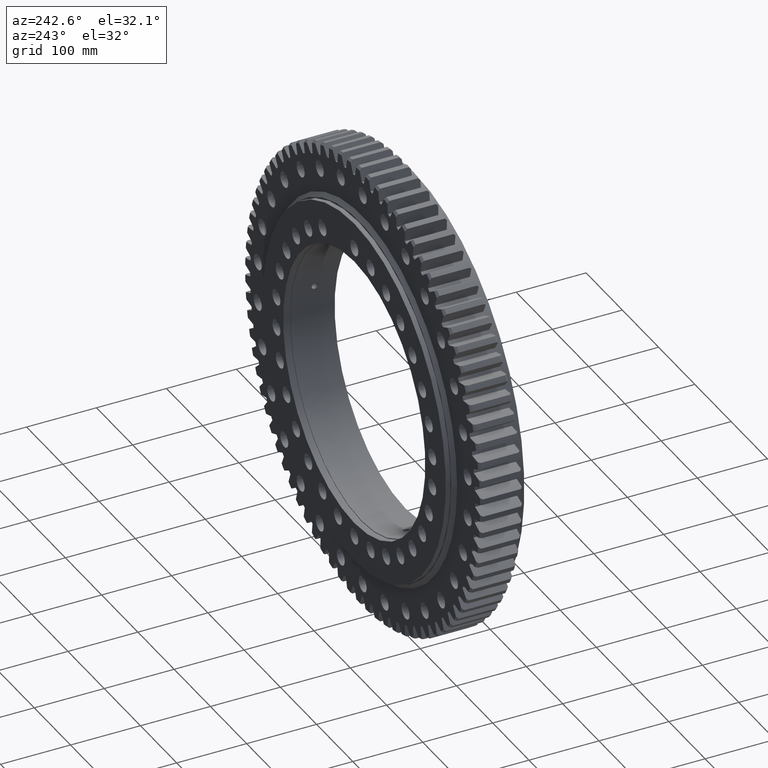
[diagram: clean part render]
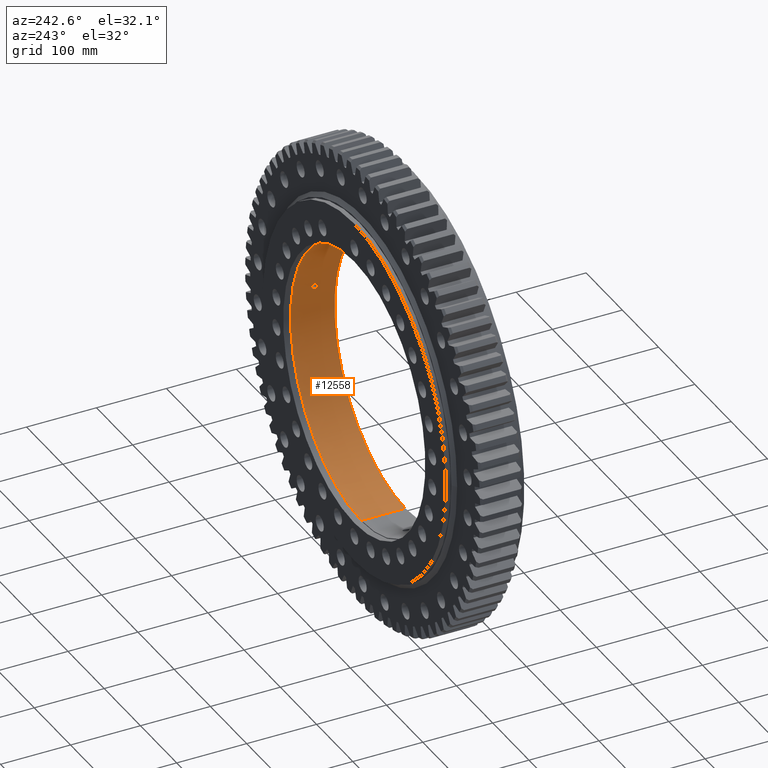
[diagram: same view with one face highlighted and labeled with its STEP entity id]
A machine part, auxiliary view. The second image highlights one B-rep face of the part: STEP entity #12558.
In plain terms, the highlighted cylindrical surface (partial cylindrical patch) has radius 195 mm, axis along (-0, 1, -0).
Its self-contained STEP definition (entity closure, byte-faithful):
#595 = DIRECTION ( 'NONE',  ( -0.0000000000000000000, 1.000000000000000000, -2.727064569436389700E-017 ) ) ;
#962 = CARTESIAN_POINT ( 'NONE',  ( 191.4508644823597500, 2.743387960130684500, 37.03502625930509100 ) ) ;
#1006 = CARTESIAN_POINT ( 'NONE',  ( 0.0000000000000000000, -30.50000000000000000, 195.0000000000000000 ) ) ;
#1032 = CARTESIAN_POINT ( 'NONE',  ( 189.7523843377225900, -0.2936337623123964600, 44.93364706040692600 ) ) ;
#1047 = CARTESIAN_POINT ( 'NONE',  ( 190.4327062259206100, 4.270939296633571300, 41.95781953946117700 ) ) ;
#1101 = CARTESIAN_POINT ( 'NONE',  ( 189.8882821605182900, -2.252607797243045200, 44.35614260135875500 ) ) ;
#1118 = CARTESIAN_POINT ( 'NONE',  ( 189.7523843377225900, 2.978303557147329600E-009, 44.93364706040692600 ) ) ;
#1184 = CARTESIAN_POINT ( 'NONE',  ( 190.9771055850717700, -4.357372918574981200, 39.40593613830517900 ) ) ;
#1246 = VERTEX_POINT ( 'NONE', #12098 ) ;
#1263 = CARTESIAN_POINT ( 'NONE',  ( 191.6235895550823000, -0.2972688429293887700, 36.13031865380271100 ) ) ;
#1591 = DIRECTION ( 'NONE',  ( 0.0000000000000000000, 0.0000000000000000000, 1.000000000000000000 ) ) ;
#1800 = VECTOR ( 'NONE', #12474, 1000.000000000000000 ) ;
#2693 = EDGE_CURVE ( 'NONE', #11016, #1246, #6955, .T. ) ;
#2810 = CARTESIAN_POINT ( 'NONE',  ( 191.3349925030445600, 3.390108493364388100, 37.62929399848427900 ) ) ;
#2886 = CARTESIAN_POINT ( 'NONE',  ( 190.2570841973981700, 3.904585183641528600, 42.74694585262260200 ) ) ;
#2949 = CARTESIAN_POINT ( 'NONE',  ( 190.0049047972447300, -2.972158334166863400, 43.85406631212037400 ) ) ;
#3039 = CARTESIAN_POINT ( 'NONE',  ( 191.1432848899004900, -4.045610815122857100, 38.59169758609407800 ) ) ;
#3598 = VERTEX_POINT ( 'NONE', #20332 ) ;
#3937 = VERTEX_POINT ( 'NONE', #1006 ) ;
#4648 = CARTESIAN_POINT ( 'NONE',  ( 191.1950594278432300, 3.905336886321811600, 38.33418546286603900 ) ) ;
#4707 = CARTESIAN_POINT ( 'NONE',  ( 189.7523843377225900, 2.978303557147329600E-009, 44.93364706040692600 ) ) ;
#4726 = CARTESIAN_POINT ( 'NONE',  ( 190.0990210683878000, 3.392740624628221000, 43.44429008485349900 ) ) ;
#4781 = CARTESIAN_POINT ( 'NONE',  ( 190.1491596148080100, -3.577392859251871600, 43.22449506670501800 ) ) ;
#4793 = CARTESIAN_POINT ( 'NONE',  ( 191.6235895550823900, 2.978304853034704600E-009, 36.13031865380272500 ) ) ;
#4855 = CARTESIAN_POINT ( 'NONE',  ( 191.2897911631632200, -3.581673295871853600, 37.85862612065307100 ) ) ;
#4958 = ORIENTED_EDGE ( 'NONE', *, *, #21437, .F. ) ;
#5413 = EDGE_LOOP ( 'NONE', ( #9152, #22489 ) ) ;
#5568 = VECTOR ( 'NONE', #21011, 1000.000000000000000 ) ;
#5578 = AXIS2_PLACEMENT_3D ( 'NONE', #11571, #595, #20726 ) ;
#5661 = ORIENTED_EDGE ( 'NONE', *, *, #7704, .F. ) ;
#6098 = AXIS2_PLACEMENT_3D ( 'NONE', #6330, #19206, #8200 ) ;
#6330 = CARTESIAN_POINT ( 'NONE',  ( 0.0000000000000000000, -30.50000000000000700, -1.442906990181240800E-017 ) ) ;
#6466 = CARTESIAN_POINT ( 'NONE',  ( 191.0355005872471600, 4.269490963613296100, 39.12174388654202800 ) ) ;
#6539 = CARTESIAN_POINT ( 'NONE',  ( 189.9628605450194800, 2.744967806796167600, 44.03564666844320600 ) ) ;
#6602 = CARTESIAN_POINT ( 'NONE',  ( 190.3135454052433000, -4.042861078394287800, 42.49504028075790500 ) ) ;
#6656 = CARTESIAN_POINT ( 'NONE',  ( 2.388061258337338900E-014, 32.49999999999995700, -195.0000000000000000 ) ) ;
#6681 = CARTESIAN_POINT ( 'NONE',  ( 191.4144211749391500, -2.976688936708765000, 37.22314571302727900 ) ) ;
#6955 = B_SPLINE_CURVE_WITH_KNOTS ( 'NONE', 3,
 ( #17411, #19253, #8243, #21101, #10073, #22930, #11942, #962, #13798, #2810, #15639, #4648, #17484, #6466, #19330, #8319, #21165, #10155, #23012, #12005, #1047, #13873, #2886, #15705, #4726, #17567, #6539, #19407, #8393, #21245, #10232, #23095, #12093, #1118 ),
 .UNSPECIFIED., .F., .F.,
 ( 4, 2, 2, 2, 2, 2, 2, 2, 2, 2, 2, 2, 2, 2, 2, 2, 4 ),
 ( 2.069258206947351600E-018, 0.0008793452372478159200, 0.001758690474495629900, 0.002638035711743443600, 0.003517380948991257600, 0.004396726186239071100, 0.005276071423486884700, 0.006155416660734699100, 0.007034761897982512600, 0.007914107135230327000, 0.008793452372478140600, 0.009672797609725954100, 0.01055214284697376800, 0.01143148808422158100, 0.01231083332146939600, 0.01319017855871721000, 0.01406952379596502400 ),
 .UNSPECIFIED. ) ;
#7198 = CIRCLE ( 'NONE', #9283, 195.0000000000000000 ) ;
#7301 = EDGE_CURVE ( 'NONE', #3937, #3598, #20231, .T. ) ;
#7409 = VERTEX_POINT ( 'NONE', #17716 ) ;
#7704 = EDGE_CURVE ( 'NONE', #3937, #7409, #8419, .T. ) ;
#8200 = DIRECTION ( 'NONE',  ( 0.0000000000000000000, 3.558407130208835400E-017, 1.000000000000000000 ) ) ;
#8243 = CARTESIAN_POINT ( 'NONE',  ( 191.6181876307763300, 0.5897009595571000000, 36.15900218009785000 ) ) ;
#8319 = CARTESIAN_POINT ( 'NONE',  ( 190.8602000491430600, 4.471352111040975100, 39.96834262881372300 ) ) ;
#8393 = CARTESIAN_POINT ( 'NONE',  ( 189.8568599202523600, 1.994566273605697300, 44.49028549171482900 ) ) ;
#8419 = CIRCLE ( 'NONE', #6098, 195.0000000000000000 ) ;
#8470 = CARTESIAN_POINT ( 'NONE',  ( 190.4927762417121900, -4.355722123414590600, 41.68434854929353900 ) ) ;
#8536 = CARTESIAN_POINT ( 'NONE',  ( 191.5120761640975800, -2.259564573645550700, 36.71718581034529200 ) ) ;
#8607 = FACE_BOUND ( 'NONE', #5413, .T. ) ;
#9152 = ORIENTED_EDGE ( 'NONE', *, *, #2693, .T. ) ;
#9283 = AXIS2_PLACEMENT_3D ( 'NONE', #23580, #12573, #1591 ) ;
#9988 = CARTESIAN_POINT ( 'NONE',  ( 0.0000000000000000000, 31.02910628019325000, 195.0000000000000000 ) ) ;
#10073 = CARTESIAN_POINT ( 'NONE',  ( 191.5808528900899400, 1.450704799674385600, 36.35642408097225300 ) ) ;
#10155 = CARTESIAN_POINT ( 'NONE',  ( 190.6780907932021600, 4.500103860717652900, 40.82832158911151100 ) ) ;
#10213 = CARTESIAN_POINT ( 'NONE',  ( 189.7854158466919600, -1.165459485572059000, 44.79396434560320000 ) ) ;
#10232 = CARTESIAN_POINT ( 'NONE',  ( 189.7856344475947600, 1.168592549947755000, 44.79303814650442900 ) ) ;
#10290 = CARTESIAN_POINT ( 'NONE',  ( 190.6763000372392600, -4.499749576480315500, 40.83670711082712800 ) ) ;
#10380 = CARTESIAN_POINT ( 'NONE',  ( 191.5805053112551100, -1.455786177008173000, 36.35825397383781900 ) ) ;
#10499 = B_SPLINE_CURVE_WITH_KNOTS ( 'NONE', 3,
 ( #4707, #1032, #21228, #10213, #23070, #12071, #1101, #13946, #2949, #15763, #4781, #17630, #6602, #19463, #8470, #21310, #10290, #23159, #12157, #1184, #14009, #3039, #15846, #4855, #17706, #6681, #19538, #8536, #21398, #10380, #23233, #12244, #1263, #14088 ),
 .UNSPECIFIED., .F., .F.,
 ( 4, 2, 2, 2, 2, 2, 2, 2, 2, 2, 2, 2, 2, 2, 2, 2, 4 ),
 ( 0.01406952379596502400, 0.01494867017853068600, 0.01582781656109634800, 0.01670696294366200800, 0.01758610932622766900, 0.01846525570879332900, 0.01934440209135899300, 0.02022354847392465400, 0.02110269485649031400, 0.02198184123905597800, 0.02286098762162163900, 0.02374013400418729900, 0.02461928038675296300, 0.02549842676931862700, 0.02637757315188428800, 0.02725671953444994800, 0.02813586591701560900 ),
 .UNSPECIFIED. ) ;
#11016 = VERTEX_POINT ( 'NONE', #4793 ) ;
#11571 = CARTESIAN_POINT ( 'NONE',  ( 0.0000000000000000000, 31.02910628019324300, -1.692367527159823000E-015 ) ) ;
#11873 = EDGE_LOOP ( 'NONE', ( #4958, #5661, #19985, #13749 ) ) ;
#11942 = CARTESIAN_POINT ( 'NONE',  ( 191.5126411785000500, 2.254196173938304500, 36.71423361457191700 ) ) ;
#12005 = CARTESIAN_POINT ( 'NONE',  ( 190.4928943939377700, 4.355935332121831000, 41.68381546114041200 ) ) ;
#12071 = CARTESIAN_POINT ( 'NONE',  ( 189.8565470126642100, -1.991474633379098700, 44.49161852066941900 ) ) ;
#12093 = CARTESIAN_POINT ( 'NONE',  ( 189.7523843377226200, 0.2937001854780423300, 44.93364706040692600 ) ) ;
#12098 = CARTESIAN_POINT ( 'NONE',  ( 189.7523843377225900, 2.978303557147329600E-009, 44.93364706040692600 ) ) ;
#12157 = CARTESIAN_POINT ( 'NONE',  ( 190.8600754887205000, -4.471226718900609900, 39.96891598514729800 ) ) ;
#12244 = CARTESIAN_POINT ( 'NONE',  ( 191.6181897376653500, -0.5914452340569447100, 36.15899269965812800 ) ) ;
#12474 = DIRECTION ( 'NONE',  ( -0.0000000000000000000, 1.000000000000000000, -2.727064569436389700E-017 ) ) ;
#12558 = ADVANCED_FACE ( 'NONE', ( #18397, #8607 ), #12933, .F. ) ;
#12573 = DIRECTION ( 'NONE',  ( 0.0000000000000000000, -1.000000000000000000, 0.0000000000000000000 ) ) ;
#12933 = CYLINDRICAL_SURFACE ( 'NONE', #5578, 195.0000000000000000 ) ;
#13749 = ORIENTED_EDGE ( 'NONE', *, *, #15276, .F. ) ;
#13798 = CARTESIAN_POINT ( 'NONE',  ( 191.4147033141087200, 2.974990933369962700, 37.22169364948617000 ) ) ;
#13873 = CARTESIAN_POINT ( 'NONE',  ( 190.3147241285655600, 4.045546265076793300, 42.48976348371173400 ) ) ;
#13946 = CARTESIAN_POINT ( 'NONE',  ( 189.9628871738198100, -2.745451360899259500, 44.03553774999552700 ) ) ;
#14009 = CARTESIAN_POINT ( 'NONE',  ( 191.0345142954145100, -4.271316305180678600, 39.12657446024700600 ) ) ;
#14088 = CARTESIAN_POINT ( 'NONE',  ( 191.6235895550823900, 2.978304853034704600E-009, 36.13031865380272500 ) ) ;
#14320 = CARTESIAN_POINT ( 'NONE',  ( 2.388061258337338900E-014, 31.02910628019323600, -195.0000000000000000 ) ) ;
#15276 = EDGE_CURVE ( 'NONE', #17058, #3598, #7198, .T. ) ;
#15639 = CARTESIAN_POINT ( 'NONE',  ( 191.2911776864146100, 3.576381758652874800, 37.85162960907308600 ) ) ;
#15705 = CARTESIAN_POINT ( 'NONE',  ( 190.1495742985492800, 3.578744255423913100, 43.22266605732885800 ) ) ;
#15763 = CARTESIAN_POINT ( 'NONE',  ( 190.0977219866611600, -3.387315937962711100, 43.44996058225995500 ) ) ;
#15846 = CARTESIAN_POINT ( 'NONE',  ( 191.1942562926846600, -3.907526550579209600, 38.33818117330574900 ) ) ;
#17019 = LINE ( 'NONE', #14320, #1800 ) ;
#17058 = VERTEX_POINT ( 'NONE', #6656 ) ;
#17411 = CARTESIAN_POINT ( 'NONE',  ( 191.6235895550823900, 2.978304853034704600E-009, 36.13031865380272500 ) ) ;
#17484 = CARTESIAN_POINT ( 'NONE',  ( 191.1434192681341000, 4.045108401860882300, 38.59101708727801800 ) ) ;
#17567 = CARTESIAN_POINT ( 'NONE',  ( 190.0049521039215400, 2.972750369409137900, 43.85387472188425300 ) ) ;
#17630 = CARTESIAN_POINT ( 'NONE',  ( 190.2570411054657900, -3.904548741303675500, 42.74714242826644300 ) ) ;
#17706 = CARTESIAN_POINT ( 'NONE',  ( 191.3346259568473600, -3.391786831310863400, 37.63115890407252800 ) ) ;
#17716 = CARTESIAN_POINT ( 'NONE',  ( 2.388061258337338900E-014, -30.50000000000001400, -195.0000000000000000 ) ) ;
#18397 = FACE_OUTER_BOUND ( 'NONE', #11873, .T. ) ;
#18903 = EDGE_CURVE ( 'NONE', #1246, #11016, #10499, .T. ) ;
#19206 = DIRECTION ( 'NONE',  ( -0.0000000000000000000, 1.000000000000000000, -2.727064569436389700E-017 ) ) ;
#19253 = CARTESIAN_POINT ( 'NONE',  ( 191.6235895550823600, 0.2973360883162419200, 36.13031865380271800 ) ) ;
#19330 = CARTESIAN_POINT ( 'NONE',  ( 190.9784273821254000, 4.355837401637877800, 39.39955139266702800 ) ) ;
#19407 = CARTESIAN_POINT ( 'NONE',  ( 189.8889836058545800, 2.257546428416124400, 44.35313370090070600 ) ) ;
#19463 = CARTESIAN_POINT ( 'NONE',  ( 190.4313779502326200, -4.268825979059081500, 41.96384521409509500 ) ) ;
#19538 = CARTESIAN_POINT ( 'NONE',  ( 191.4498663915680900, -2.750374543142320300, 37.04019045800523500 ) ) ;
#19985 = ORIENTED_EDGE ( 'NONE', *, *, #7301, .T. ) ;
#20231 = LINE ( 'NONE', #9988, #5568 ) ;
#20332 = CARTESIAN_POINT ( 'NONE',  ( 0.0000000000000000000, 32.49999999999995700, 195.0000000000000000 ) ) ;
#20726 = DIRECTION ( 'NONE',  ( 0.0000000000000000000, 3.558407130208835400E-017, 1.000000000000000000 ) ) ;
#21011 = DIRECTION ( 'NONE',  ( -0.0000000000000000000, 1.000000000000000000, -2.727064569436389700E-017 ) ) ;
#21101 = CARTESIAN_POINT ( 'NONE',  ( 191.5969487793615800, 1.164895472990644700, 36.27137284419247000 ) ) ;
#21165 = CARTESIAN_POINT ( 'NONE',  ( 190.8001373907270900, 4.499895578754973300, 40.25411437361707800 ) ) ;
#21228 = CARTESIAN_POINT ( 'NONE',  ( 189.7589512902301000, -0.5854672897014789900, 44.90594298229409300 ) ) ;
#21245 = CARTESIAN_POINT ( 'NONE',  ( 189.8051837103059000, 1.449148534894811200, 44.71023371231311200 ) ) ;
#21310 = CARTESIAN_POINT ( 'NONE',  ( 190.6149057405960400, -4.470442735185180500, 41.12226189982378300 ) ) ;
#21398 = CARTESIAN_POINT ( 'NONE',  ( 191.5384408185296900, -1.997066468247154600, 36.57920633568397100 ) ) ;
#21437 = EDGE_CURVE ( 'NONE', #7409, #17058, #17019, .T. ) ;
#22489 = ORIENTED_EDGE ( 'NONE', *, *, #18903, .T. ) ;
#22930 = CARTESIAN_POINT ( 'NONE',  ( 191.5385929709410400, 1.995710232340033800, 36.57841123889795700 ) ) ;
#23012 = CARTESIAN_POINT ( 'NONE',  ( 190.6154407987093900, 4.470842575937347800, 41.11978860709383800 ) ) ;
#23070 = CARTESIAN_POINT ( 'NONE',  ( 189.8052762816271900, -1.449913710815200300, 44.70983849015674800 ) ) ;
#23095 = CARTESIAN_POINT ( 'NONE',  ( 189.7591737468640100, 0.5919728921287393800, 44.90500292815641400 ) ) ;
#23159 = CARTESIAN_POINT ( 'NONE',  ( 190.7996949372717700, -4.500247252744304500, 40.25623498777270000 ) ) ;
#23233 = CARTESIAN_POINT ( 'NONE',  ( 191.5965581915963300, -1.173639356174422700, 36.27343767177441700 ) ) ;
#23580 = CARTESIAN_POINT ( 'NONE',  ( 0.0000000000000000000, 32.49999999999995700, -1.732479748646736900E-015 ) ) ;